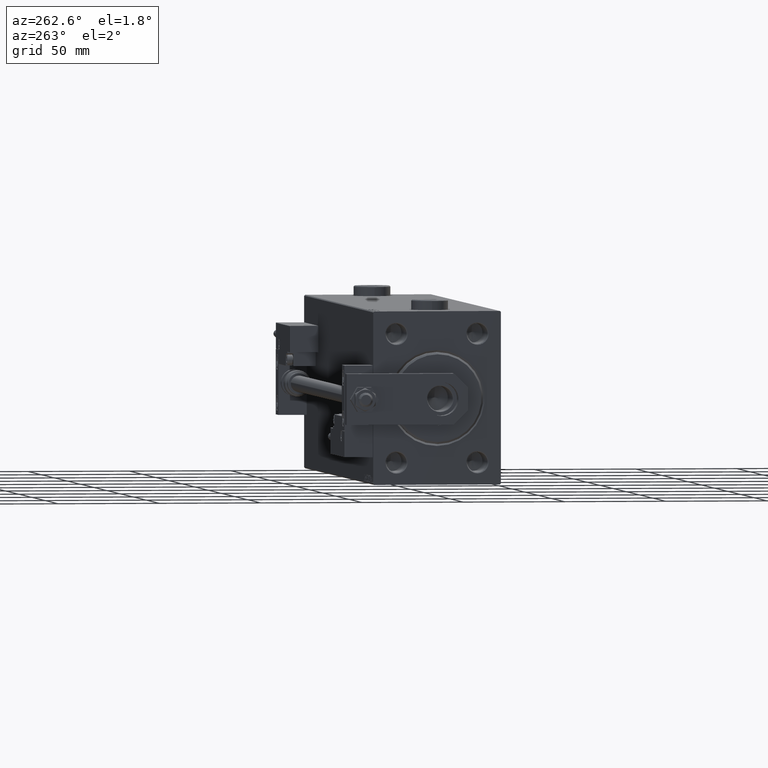
[diagram: clean part render]
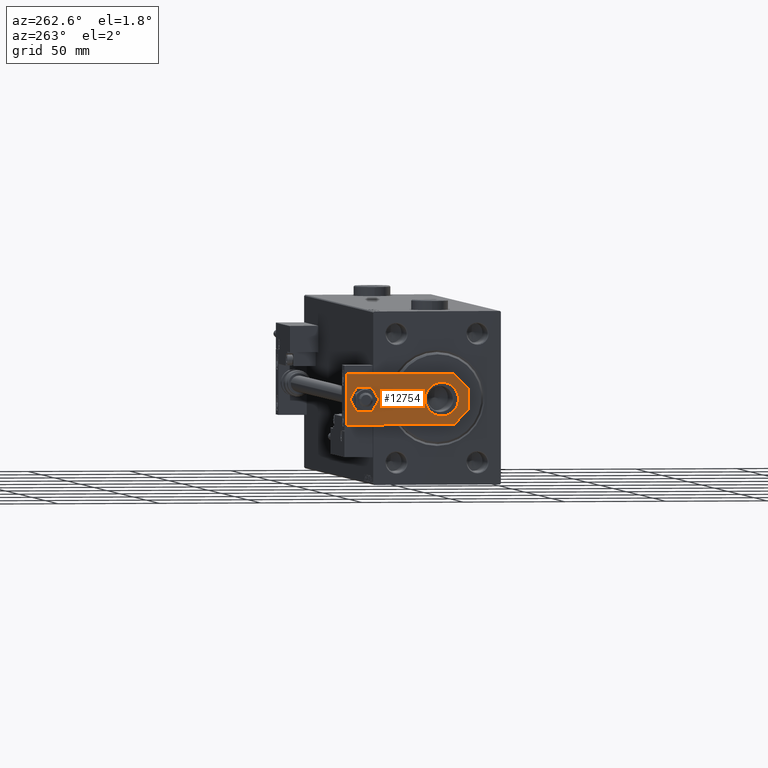
[diagram: same view with one face highlighted and labeled with its STEP entity id]
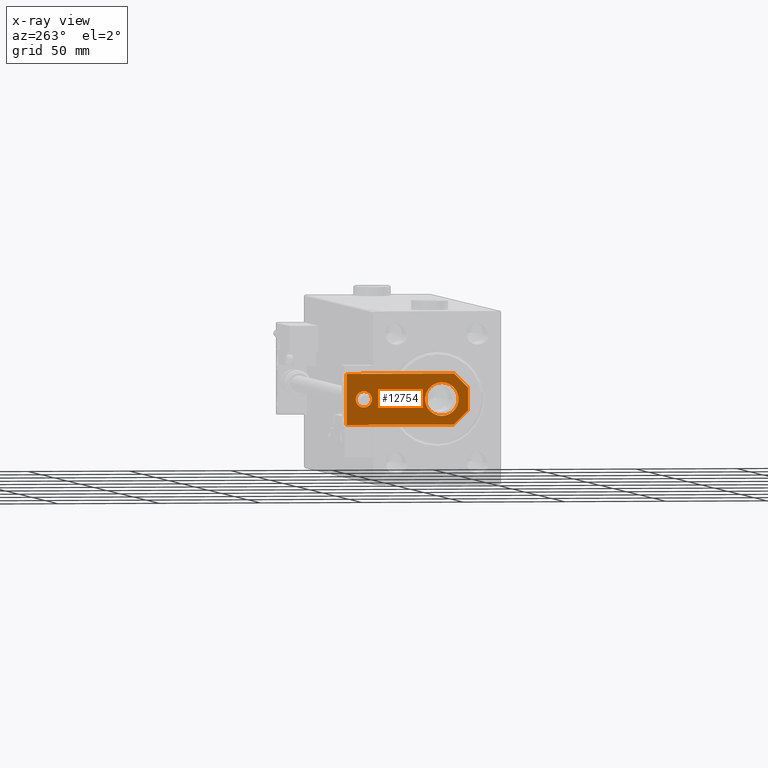
[diagram: x-ray of the same camera — body ghosted, the highlighted face saturated]
A machine part, auxiliary view. The second image highlights one B-rep face of the part: STEP entity #12754.
The next image is the same camera in x-ray: the body ghosted, the highlighted face saturated — about 0% of this face is hidden behind the body in this view.
In plain terms, the highlighted planar face has unit normal (-1, -0, 0).
Its self-contained STEP definition (entity closure, byte-faithful):
#1010 = LINE ( 'NONE', #50164, #26439 ) ;
#1107 = AXIS2_PLACEMENT_3D ( 'NONE', #11441, #36131, #27118 ) ;
#1266 = EDGE_CURVE ( 'NONE', #27675, #20219, #2433, .T. ) ;
#1370 = LINE ( 'NONE', #18343, #43632 ) ;
#1445 = VECTOR ( 'NONE', #52180, 1000.000000000000000 ) ;
#1629 = ORIENTED_EDGE ( 'NONE', *, *, #1891, .F. ) ;
#1891 = EDGE_CURVE ( 'NONE', #43220, #16057, #51725, .T. ) ;
#2297 = EDGE_LOOP ( 'NONE', ( #50608, #12552, #12930, #41666, #16495, #6297 ) ) ;
#2433 = CIRCLE ( 'NONE', #25378, 4.000000000000000888 ) ;
#3810 = CARTESIAN_POINT ( 'NONE',  ( 5.499999999999976907, 4.814824860968089633E-32, 6.000000000000000000 ) ) ;
#4357 = VERTEX_POINT ( 'NONE', #35886 ) ;
#5205 = CARTESIAN_POINT ( 'NONE',  ( -12.49999999999999822, 60.00000000000000000, 6.000000000000000000 ) ) ;
#5782 = DIRECTION ( 'NONE',  ( 0.000000000000000000, 1.000000000000000000, 0.000000000000000000 ) ) ;
#5968 = CARTESIAN_POINT ( 'NONE',  ( 4.000000000000000888, 51.50000000000000000, 6.000000000000000000 ) ) ;
#5994 = VERTEX_POINT ( 'NONE', #26538 ) ;
#6297 = ORIENTED_EDGE ( 'NONE', *, *, #49411, .T. ) ;
#8557 = DIRECTION ( 'NONE',  ( 1.000000000000000000, 0.000000000000000000, 0.000000000000000000 ) ) ;
#9570 = VERTEX_POINT ( 'NONE', #33217 ) ;
#9720 = CIRCLE ( 'NONE', #12993, 8.250000000000000000 ) ;
#10915 = FACE_BOUND ( 'NONE', #38799, .T. ) ;
#11441 = CARTESIAN_POINT ( 'NONE',  ( 0.000000000000000000, 0.000000000000000000, 6.000000000000000000 ) ) ;
#12453 = DIRECTION ( 'NONE',  ( 1.000000000000000000, 0.000000000000000000, 0.000000000000000000 ) ) ;
#12540 = CARTESIAN_POINT ( 'NONE',  ( -1.432611055310774642E-16, 51.50000000000000000, 6.000000000000000000 ) ) ;
#12552 = ORIENTED_EDGE ( 'NONE', *, *, #50877, .T. ) ;
#12692 = LINE ( 'NONE', #28901, #15035 ) ;
#12745 = DIRECTION ( 'NONE',  ( 1.000000000000000000, 0.000000000000000000, 0.000000000000000000 ) ) ;
#12754 = ADVANCED_FACE ( 'NONE', ( #10915, #22875, #15936 ), #39085, .T. ) ;
#12930 = ORIENTED_EDGE ( 'NONE', *, *, #18691, .T. ) ;
#12993 = AXIS2_PLACEMENT_3D ( 'NONE', #40643, #45676, #12453 ) ;
#14317 = EDGE_LOOP ( 'NONE', ( #19551, #1629 ) ) ;
#15035 = VECTOR ( 'NONE', #16935, 1000.000000000000000 ) ;
#15936 = FACE_BOUND ( 'NONE', #14317, .T. ) ;
#15998 = CARTESIAN_POINT ( 'NONE',  ( 12.50000000000000355, 60.00000000000000000, 6.000000000000000000 ) ) ;
#16057 = VERTEX_POINT ( 'NONE', #43587 ) ;
#16495 = ORIENTED_EDGE ( 'NONE', *, *, #34801, .T. ) ;
#16935 = DIRECTION ( 'NONE',  ( 0.7071067811865465735, -0.7071067811865485719, 0.000000000000000000 ) ) ;
#17944 = LINE ( 'NONE', #5205, #19831 ) ;
#18343 = CARTESIAN_POINT ( 'NONE',  ( 2.749999999999980016, -2.749999999999988010, 6.000000000000000000 ) ) ;
#18691 = EDGE_CURVE ( 'NONE', #9570, #46360, #24492, .T. ) ;
#19551 = ORIENTED_EDGE ( 'NONE', *, *, #41753, .F. ) ;
#19831 = VECTOR ( 'NONE', #37602, 1000.000000000000000 ) ;
#20219 = VERTEX_POINT ( 'NONE', #26639 ) ;
#21024 = CARTESIAN_POINT ( 'NONE',  ( -12.50000000000000355, 4.814824860968089633E-32, 6.000000000000000000 ) ) ;
#21646 = ORIENTED_EDGE ( 'NONE', *, *, #32059, .F. ) ;
#22087 = AXIS2_PLACEMENT_3D ( 'NONE', #26030, #29213, #12745 ) ;
#22298 = DIRECTION ( 'NONE',  ( 1.000000000000000000, 0.000000000000000000, 0.000000000000000000 ) ) ;
#22875 = FACE_OUTER_BOUND ( 'NONE', #2297, .T. ) ;
#23665 = CARTESIAN_POINT ( 'NONE',  ( 12.50000000000000355, 7.000000000000006217, 6.000000000000000000 ) ) ;
#24492 = LINE ( 'NONE', #21024, #40255 ) ;
#25378 = AXIS2_PLACEMENT_3D ( 'NONE', #12540, #28741, #8557 ) ;
#26030 = CARTESIAN_POINT ( 'NONE',  ( -1.432611055310774642E-16, 51.50000000000000000, 6.000000000000000000 ) ) ;
#26439 = VECTOR ( 'NONE', #5782, 1000.000000000000000 ) ;
#26538 = CARTESIAN_POINT ( 'NONE',  ( 12.50000000000000355, 60.00000000000000000, 6.000000000000000000 ) ) ;
#26639 = CARTESIAN_POINT ( 'NONE',  ( -4.000000000000000888, 51.50000000000000000, 6.000000000000000000 ) ) ;
#27118 = DIRECTION ( 'NONE',  ( 1.000000000000000000, 0.000000000000000000, 0.000000000000000000 ) ) ;
#27191 = LINE ( 'NONE', #15998, #1445 ) ;
#27675 = VERTEX_POINT ( 'NONE', #5968 ) ;
#28571 = ORIENTED_EDGE ( 'NONE', *, *, #1266, .F. ) ;
#28741 = DIRECTION ( 'NONE',  ( 0.000000000000000000, 0.000000000000000000, 1.000000000000000000 ) ) ;
#28901 = CARTESIAN_POINT ( 'NONE',  ( -2.750000000000013767, -2.750000000000005773, 6.000000000000000000 ) ) ;
#29213 = DIRECTION ( 'NONE',  ( 0.000000000000000000, 0.000000000000000000, 1.000000000000000000 ) ) ;
#29993 = DIRECTION ( 'NONE',  ( 0.000000000000000000, 0.000000000000000000, 1.000000000000000000 ) ) ;
#31325 = AXIS2_PLACEMENT_3D ( 'NONE', #46224, #29993, #22298 ) ;
#31881 = VERTEX_POINT ( 'NONE', #23665 ) ;
#32059 = EDGE_CURVE ( 'NONE', #20219, #27675, #33946, .T. ) ;
#33217 = CARTESIAN_POINT ( 'NONE',  ( -5.500000000000010658, 4.814824860968089633E-32, 6.000000000000000000 ) ) ;
#33896 = CARTESIAN_POINT ( 'NONE',  ( -12.50000000000000355, 7.000000000000013323, 6.000000000000000000 ) ) ;
#33946 = CIRCLE ( 'NONE', #22087, 4.000000000000000888 ) ;
#34545 = DIRECTION ( 'NONE',  ( 0.7071067811865486830, 0.7071067811865464625, -0.000000000000000000 ) ) ;
#34801 = EDGE_CURVE ( 'NONE', #31881, #5994, #1010, .T. ) ;
#35705 = CARTESIAN_POINT ( 'NONE',  ( 8.250000000000000000, 13.00000000000000000, 6.000000000000000000 ) ) ;
#35886 = CARTESIAN_POINT ( 'NONE',  ( -12.49999999999999822, 60.00000000000000000, 6.000000000000000000 ) ) ;
#36131 = DIRECTION ( 'NONE',  ( -0.000000000000000000, 0.000000000000000000, 1.000000000000000000 ) ) ;
#37602 = DIRECTION ( 'NONE',  ( -8.673617379884035472E-17, -1.000000000000000000, 0.000000000000000000 ) ) ;
#38799 = EDGE_LOOP ( 'NONE', ( #21646, #28571 ) ) ;
#39085 = PLANE ( 'NONE',  #1107 ) ;
#40255 = VECTOR ( 'NONE', #44957, 1000.000000000000000 ) ;
#40643 = CARTESIAN_POINT ( 'NONE',  ( -9.629649721936179265E-32, 12.99999999999999822, 6.000000000000000000 ) ) ;
#41391 = EDGE_CURVE ( 'NONE', #46360, #31881, #1370, .T. ) ;
#41666 = ORIENTED_EDGE ( 'NONE', *, *, #41391, .T. ) ;
#41753 = EDGE_CURVE ( 'NONE', #16057, #43220, #9720, .T. ) ;
#43045 = EDGE_CURVE ( 'NONE', #4357, #43755, #17944, .T. ) ;
#43220 = VERTEX_POINT ( 'NONE', #35705 ) ;
#43587 = CARTESIAN_POINT ( 'NONE',  ( -8.250000000000000000, 12.99999999999999822, 6.000000000000000000 ) ) ;
#43632 = VECTOR ( 'NONE', #34545, 999.9999999999998863 ) ;
#43755 = VERTEX_POINT ( 'NONE', #33896 ) ;
#44957 = DIRECTION ( 'NONE',  ( 1.000000000000000000, 0.000000000000000000, 0.000000000000000000 ) ) ;
#45676 = DIRECTION ( 'NONE',  ( 0.000000000000000000, 0.000000000000000000, 1.000000000000000000 ) ) ;
#46224 = CARTESIAN_POINT ( 'NONE',  ( -9.629649721936179265E-32, 12.99999999999999822, 6.000000000000000000 ) ) ;
#46360 = VERTEX_POINT ( 'NONE', #3810 ) ;
#49411 = EDGE_CURVE ( 'NONE', #5994, #4357, #27191, .T. ) ;
#50164 = CARTESIAN_POINT ( 'NONE',  ( 12.50000000000000355, 4.814824860968089633E-32, 6.000000000000000000 ) ) ;
#50608 = ORIENTED_EDGE ( 'NONE', *, *, #43045, .T. ) ;
#50877 = EDGE_CURVE ( 'NONE', #43755, #9570, #12692, .T. ) ;
#51725 = CIRCLE ( 'NONE', #31325, 8.250000000000000000 ) ;
#52180 = DIRECTION ( 'NONE',  ( -1.000000000000000000, 0.000000000000000000, 0.000000000000000000 ) ) ;